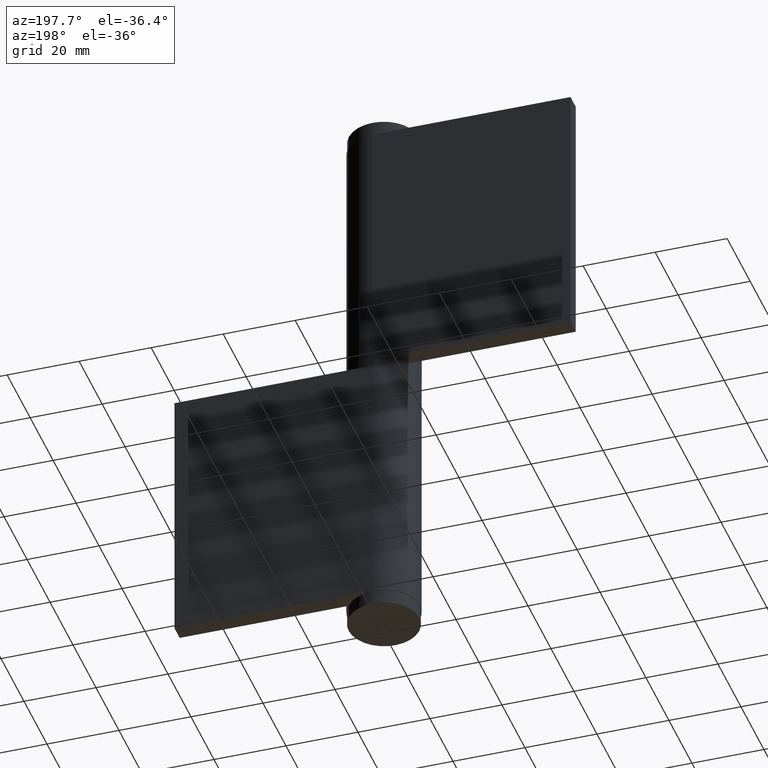
[diagram: clean part render]
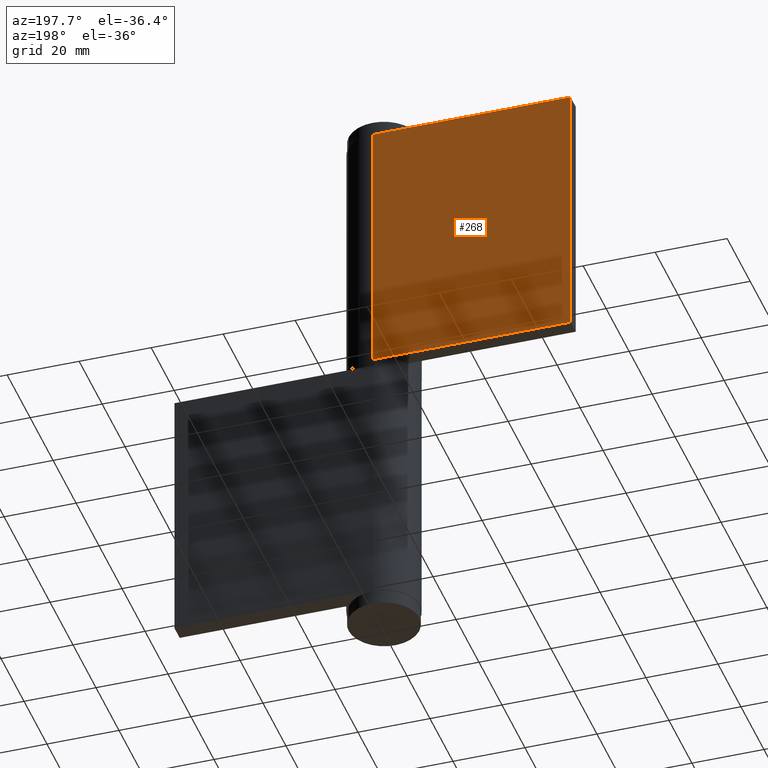
[diagram: same view with one face highlighted and labeled with its STEP entity id]
A machine part, auxiliary view. The second image highlights one B-rep face of the part: STEP entity #268.
In plain terms, the highlighted face is a freeform B-spline surface patch.
Its self-contained STEP definition (entity closure, byte-faithful):
#79=CARTESIAN_POINT('',(0.0,10.0,0.0));
#80=VERTEX_POINT('',#79);
#100=CARTESIAN_POINT('',(55.0,10.0,0.0));
#101=VERTEX_POINT('',#100);
#102=CARTESIAN_POINT('',(55.0,10.0,0.0));
#103=CARTESIAN_POINT('',(0.0,10.0,0.0));
#104=QUASI_UNIFORM_CURVE('',1,(#102,#103),.UNSPECIFIED.,.F.,.U.);
#105=EDGE_CURVE('',#101,#80,#104,.T.);
#157=CARTESIAN_POINT('',(55.0,10.0,74.0));
#158=VERTEX_POINT('',#157);
#164=CARTESIAN_POINT('',(0.0,10.0,74.0));
#165=VERTEX_POINT('',#164);
#166=CARTESIAN_POINT('',(55.0,10.0,74.0));
#167=CARTESIAN_POINT('',(0.0,10.0,74.0));
#168=QUASI_UNIFORM_CURVE('',1,(#166,#167),.UNSPECIFIED.,.F.,.U.);
#169=EDGE_CURVE('',#158,#165,#168,.T.);
#245=CARTESIAN_POINT('',(0.0,10.0,74.0));
#246=CARTESIAN_POINT('',(0.0,10.0,0.0));
#247=QUASI_UNIFORM_CURVE('',1,(#245,#246),.UNSPECIFIED.,.F.,.U.);
#248=EDGE_CURVE('',#165,#80,#247,.T.);
#253=CARTESIAN_POINT('',(-2.747249893399329,10.0,77.696299856573646));
#254=CARTESIAN_POINT('',(-2.747249893399329,10.0,-3.696301841408310));
#255=CARTESIAN_POINT('',(57.747251368614293,10.0,77.696299856573660));
#256=CARTESIAN_POINT('',(57.747251368614293,10.0,-3.696301841408310));
#257=B_SPLINE_SURFACE_WITH_KNOTS('',1,1,((#253,#255),(#254,#256)),.UNSPECIFIED.,.F.,.F.,.U.,(2,2),(2,2),(0.0,81.392601697981974),(0.0,60.494501262013607),.UNSPECIFIED.);
#258=ORIENTED_EDGE('',*,*,#105,.T.);
#259=ORIENTED_EDGE('',*,*,#248,.F.);
#260=ORIENTED_EDGE('',*,*,#169,.F.);
#261=CARTESIAN_POINT('',(55.0,10.0,74.0));
#262=CARTESIAN_POINT('',(55.0,10.0,0.0));
#263=QUASI_UNIFORM_CURVE('',1,(#261,#262),.UNSPECIFIED.,.F.,.U.);
#264=EDGE_CURVE('',#158,#101,#263,.T.);
#265=ORIENTED_EDGE('',*,*,#264,.T.);
#266=EDGE_LOOP('',(#258,#259,#260,#265));
#267=FACE_OUTER_BOUND('',#266,.T.);
#268=ADVANCED_FACE('',(#267),#257,.F.);